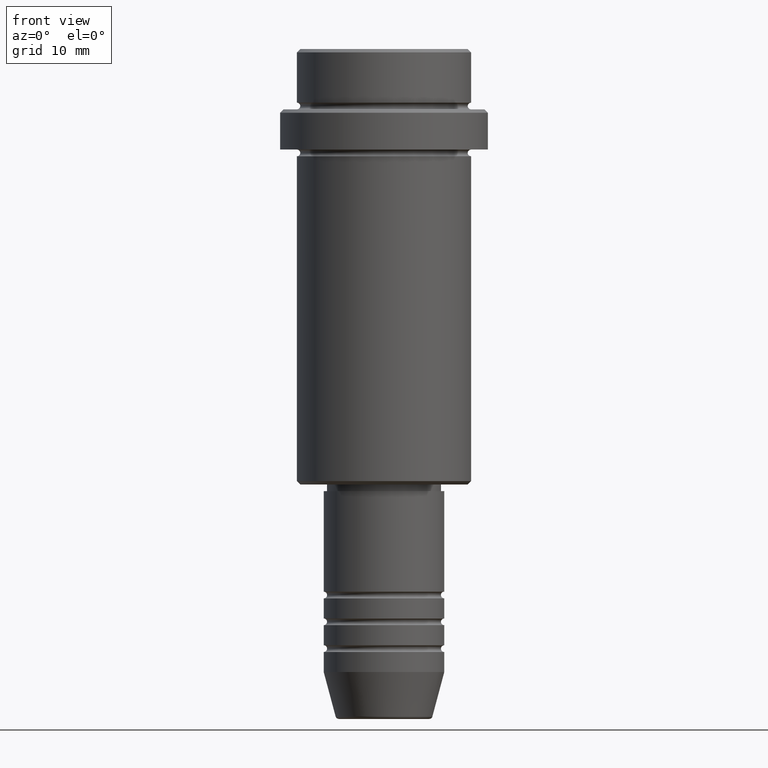
[diagram: clean part render]
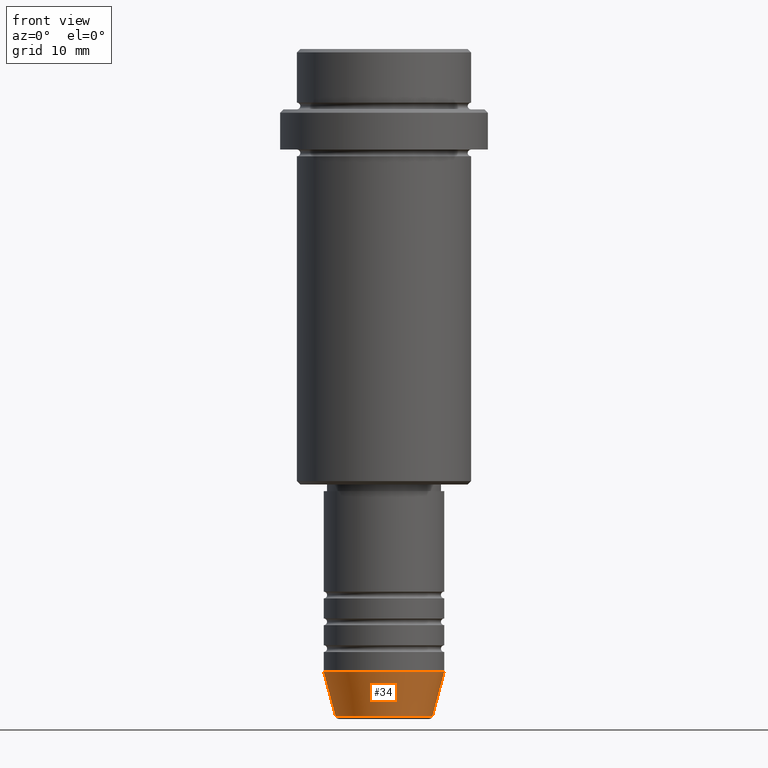
[diagram: same view with one face highlighted and labeled with its STEP entity id]
A machine part, front view. The second image highlights one B-rep face of the part: STEP entity #34.
In plain terms, the highlighted conical surface has half-angle 15 deg.
Its self-contained STEP definition (entity closure, byte-faithful):
#34 = ADVANCED_FACE ( 'NONE', ( #743 ), #1378, .T. ) ;
#39 = VERTEX_POINT ( 'NONE', #414 ) ;
#40 = LINE ( 'NONE', #1361, #144 ) ;
#144 = VECTOR ( 'NONE', #1264, 1000.000000000000000 ) ;
#163 = ORIENTED_EDGE ( 'NONE', *, *, #1318, .F. ) ;
#186 = AXIS2_PLACEMENT_3D ( 'NONE', #537, #876, #193 ) ;
#193 = DIRECTION ( 'NONE',  ( 1.000000000000000000, 0.000000000000000000, 0.000000000000000000 ) ) ;
#213 = ORIENTED_EDGE ( 'NONE', *, *, #1050, .F. ) ;
#216 = EDGE_CURVE ( 'NONE', #1124, #1257, #346, .T. ) ;
#230 = DIRECTION ( 'NONE',  ( 1.000000000000000000, 0.000000000000000000, 0.000000000000000000 ) ) ;
#329 = AXIS2_PLACEMENT_3D ( 'NONE', #884, #1209, #230 ) ;
#331 = ORIENTED_EDGE ( 'NONE', *, *, #216, .T. ) ;
#343 = CARTESIAN_POINT ( 'NONE',  ( -7.223655072137189492, 9.934123627281765110E-16, -99.62940952255127058 ) ) ;
#346 = CIRCLE ( 'NONE', #1150, 7.223655072137188604 ) ;
#393 = EDGE_CURVE ( 'NONE', #1257, #39, #40, .T. ) ;
#414 = CARTESIAN_POINT ( 'NONE',  ( 9.000000000000000000, 0.000000000000000000, -93.00000000000000000 ) ) ;
#417 = ORIENTED_EDGE ( 'NONE', *, *, #393, .T. ) ;
#537 = CARTESIAN_POINT ( 'NONE',  ( 0.000000000000000000, 0.000000000000000000, -93.00000000000000000 ) ) ;
#671 = CARTESIAN_POINT ( 'NONE',  ( 0.000000000000000000, 0.000000000000000000, -99.62940952255127058 ) ) ;
#725 = CIRCLE ( 'NONE', #329, 9.000000000000000000 ) ;
#743 = FACE_OUTER_BOUND ( 'NONE', #957, .T. ) ;
#833 = DIRECTION ( 'NONE',  ( -0.2588190451025213501, 3.169619151431772337E-17, 0.9659258262890680902 ) ) ;
#854 = CARTESIAN_POINT ( 'NONE',  ( 7.223655072137188604, 0.000000000000000000, -99.62940952255127058 ) ) ;
#876 = DIRECTION ( 'NONE',  ( -0.000000000000000000, -0.000000000000000000, 1.000000000000000000 ) ) ;
#884 = CARTESIAN_POINT ( 'NONE',  ( 0.000000000000000000, 0.000000000000000000, -93.00000000000000000 ) ) ;
#945 = LINE ( 'NONE', #1055, #1026 ) ;
#957 = EDGE_LOOP ( 'NONE', ( #163, #331, #417, #213 ) ) ;
#1006 = DIRECTION ( 'NONE',  ( -0.000000000000000000, -0.000000000000000000, 1.000000000000000000 ) ) ;
#1026 = VECTOR ( 'NONE', #833, 1000.000000000000000 ) ;
#1032 = CARTESIAN_POINT ( 'NONE',  ( -9.000000000000000000, 1.102182119232617714E-15, -93.00000000000000000 ) ) ;
#1050 = EDGE_CURVE ( 'NONE', #1160, #39, #725, .T. ) ;
#1055 = CARTESIAN_POINT ( 'NONE',  ( -9.000000000000000000, 1.102182119232617714E-15, -93.00000000000000000 ) ) ;
#1124 = VERTEX_POINT ( 'NONE', #343 ) ;
#1150 = AXIS2_PLACEMENT_3D ( 'NONE', #671, #1006, #1326 ) ;
#1160 = VERTEX_POINT ( 'NONE', #1032 ) ;
#1209 = DIRECTION ( 'NONE',  ( -0.000000000000000000, -0.000000000000000000, 1.000000000000000000 ) ) ;
#1257 = VERTEX_POINT ( 'NONE', #854 ) ;
#1264 = DIRECTION ( 'NONE',  ( 0.2588190451025213501, 0.000000000000000000, 0.9659258262890680902 ) ) ;
#1318 = EDGE_CURVE ( 'NONE', #1124, #1160, #945, .T. ) ;
#1326 = DIRECTION ( 'NONE',  ( 1.000000000000000000, 0.000000000000000000, 0.000000000000000000 ) ) ;
#1361 = CARTESIAN_POINT ( 'NONE',  ( 9.000000000000000000, 0.000000000000000000, -93.00000000000000000 ) ) ;
#1378 = CONICAL_SURFACE ( 'NONE', #186, 9.000000000000000000, 0.2617993877991500740 ) ;